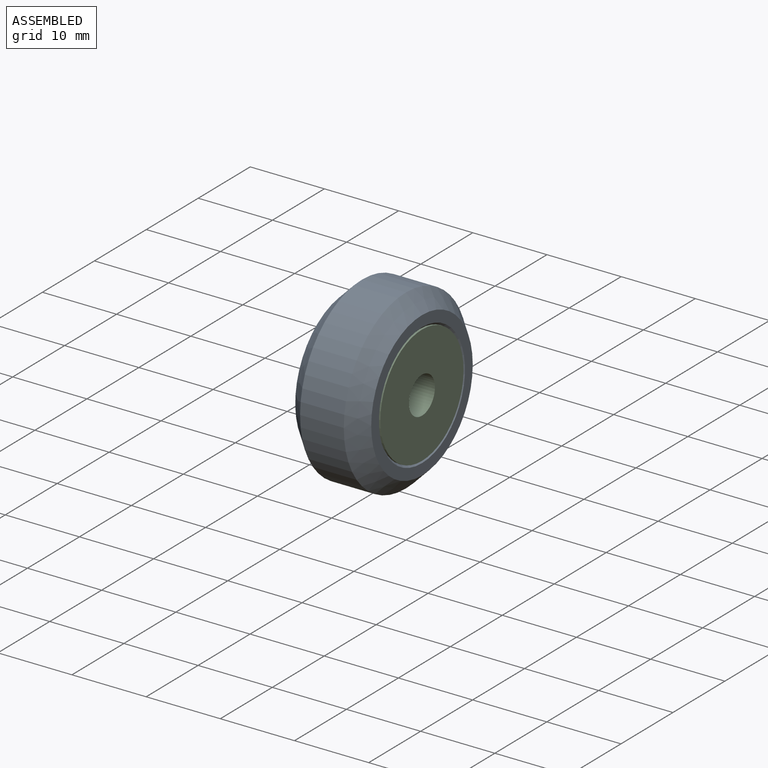
[diagram: assembled view]
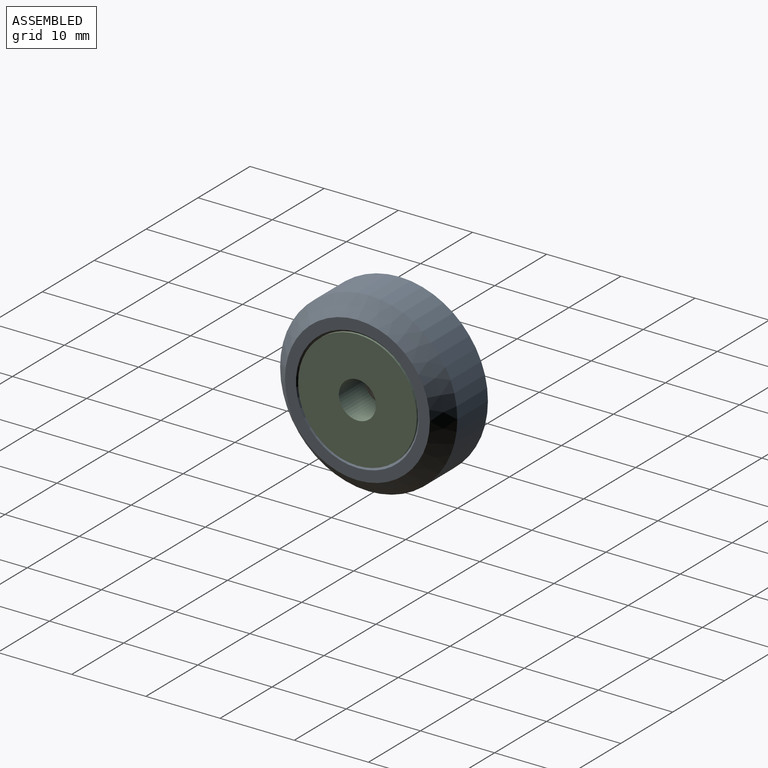
[diagram: assembled view, second angle]
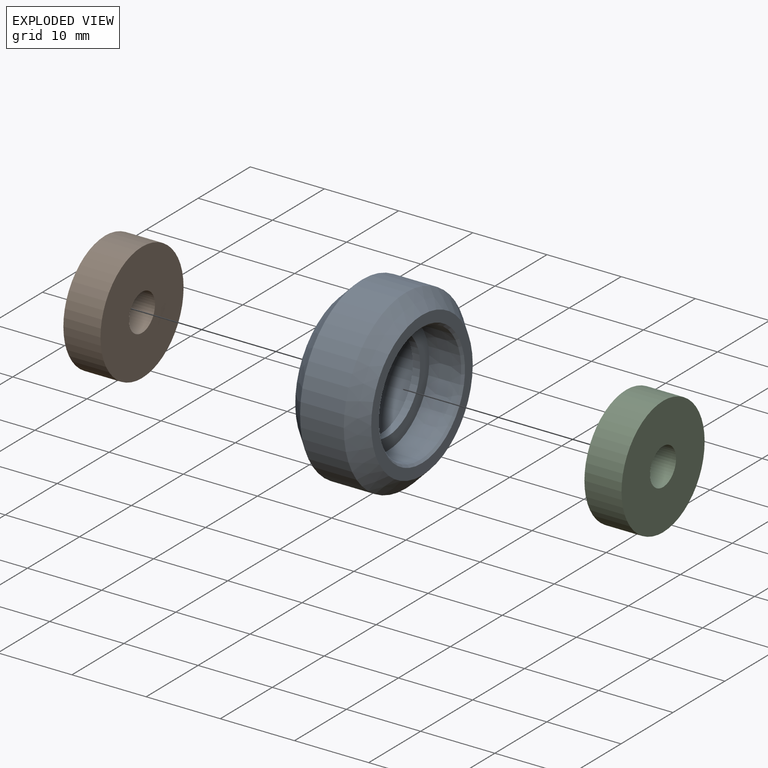
[diagram: exploded view]
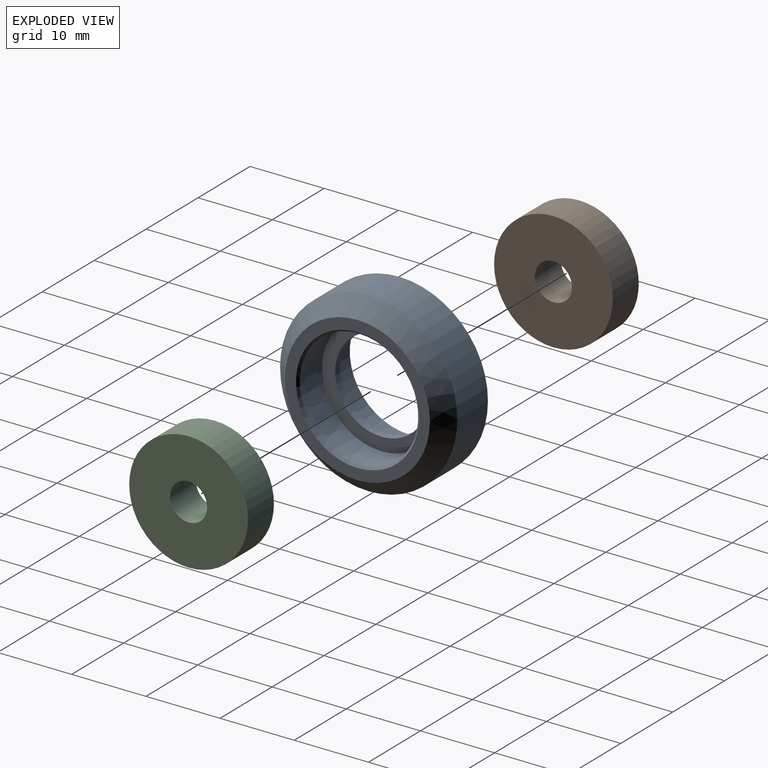
[diagram: exploded view, second angle]
ASSEMBLY  parts=3 mates=2
PART A: 12 faces, bbox 10.2x23.9x23.9 mm
  f0: cone r=7.99mm half-angle=0.2deg, axis (-1,0,0), area 216.6mm2, adj f9,f10
  f1: cone r=7.99mm half-angle=89.8deg, axis (1,0,0), area 84.1mm2, adj f2,f10
  f2: cone r=11.95mm half-angle=45deg, axis (-1,0,0), area 209.8mm2, adj f1,f3
  f3: cylinder r=11.95mm len=23.89mm, axis (-1,0,0), area 442.1mm2, adj f2,f4
  f4: cone r=9.78mm half-angle=45deg, axis (1,0,0), area 209.4mm2, adj f3,f5
  f5: plane 19.55x19.55mm, normal (-1,0,0), area 84.4mm2, adj f4,f11
  f6: cylinder r=7.99mm len=15.97mm, axis (-1,0,0), area 216.6mm2, adj f7,f11
  f7: plane 15.97x15.97mm, normal (-1,0,0), area 78.1mm2, adj f6,f8
  f8: cylinder r=6.24mm len=12.48mm, axis (-1,0,0), area 39.2mm2, adj f7,f9
  f9: plane 16x16mm, normal (1,0,0), area 78.7mm2, adj f0,f8
  f10: cone r=8.29mm half-angle=44.8deg, axis (1,0,0), area 21.7mm2, adj f0,f1
  f11: cone r=7.99mm half-angle=45deg, axis (-1,0,0), area 21.7mm2, adj f5,f6
PART B: 4 faces, bbox 5x16x16 mm
  f0: cylinder r=8mm len=16mm, axis (1,0,0), area 251.3mm2, adj f2,f3
  f1: cylinder r=2.5mm len=5mm, axis (1,0,0), area 78.5mm2, adj f2,f3
  f2: plane 16x16mm, normal (-1,0,0), area 181.4mm2, adj f0,f1
  f3: plane 16x16mm, normal (1,0,0), area 181.4mm2, adj f0,f1
PART C: same geometry as B
PLACE A t=(249.26,0.08,-151.05)mm
PLACE B t=(249.64,0.08,-151.05)mm
PLACE C t=(254.87,0.08,-151.05)mm
MATE planar C.f0 <-> A.f0  axis (1,0,0) through (5.11,0.08,-0.05)mm
MATE planar B.f0 <-> A.f0  axis (-1,0,0) through (-5.12,0.08,-0.05)mm
